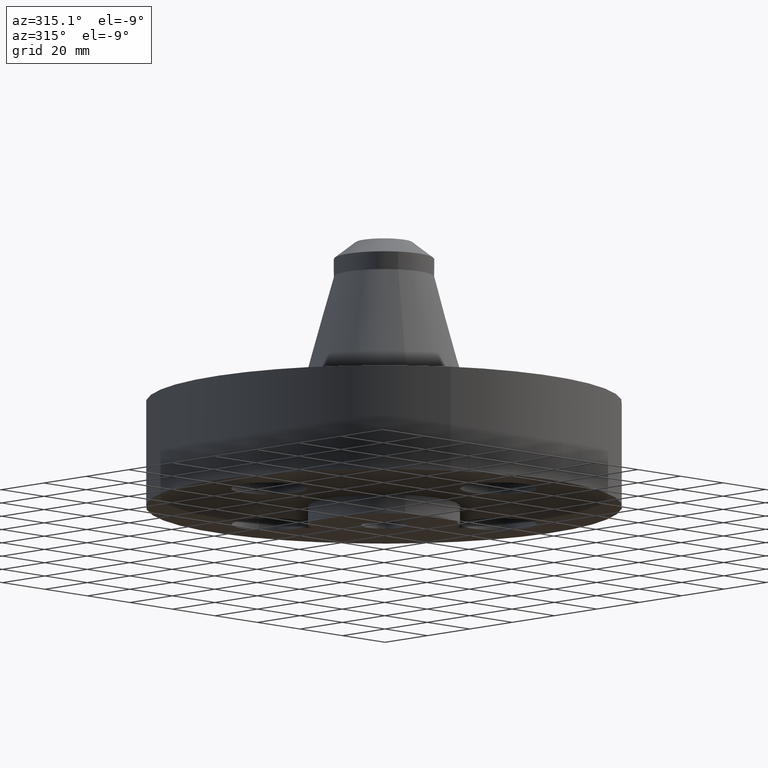
[diagram: clean part render]
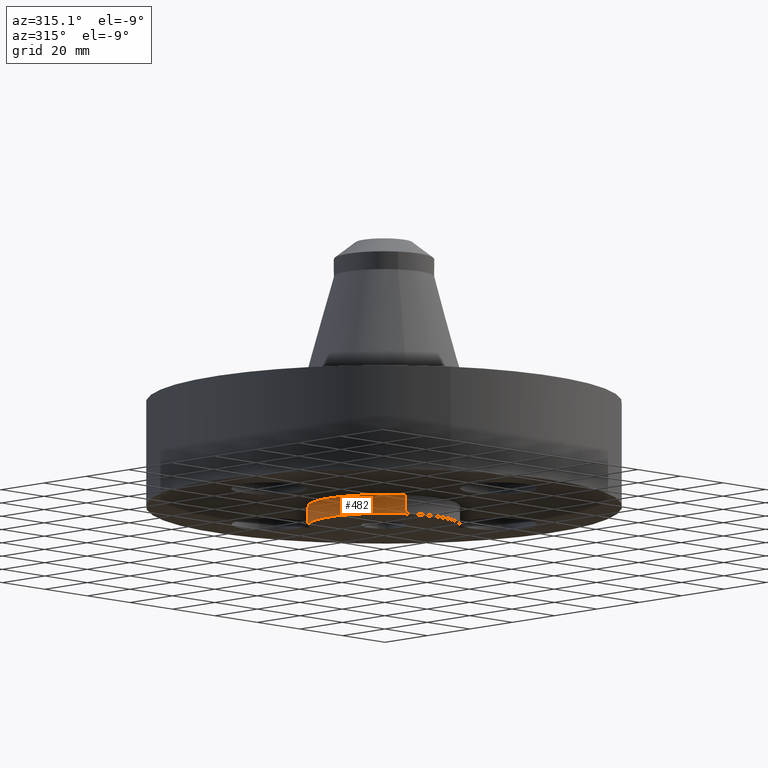
[diagram: same view with one face highlighted and labeled with its STEP entity id]
A machine part, auxiliary view. The second image highlights one B-rep face of the part: STEP entity #482.
In plain terms, the highlighted cylindrical surface (partial cylindrical patch) has radius 25.4 mm, axis along (0, 0, -1).
Its self-contained STEP definition (entity closure, byte-faithful):
#404=AXIS2_PLACEMENT_3D('Circle Axis2P3D',#402,#403,$) ;
#455=AXIS2_PLACEMENT_3D('Cylinder Axis2P3D',#452,#453,#454) ;
#466=AXIS2_PLACEMENT_3D('Circle Axis2P3D',#464,#465,$) ;
#402=CARTESIAN_POINT('Axis2P3D Location',(0.,0.,-0.250000000001)) ;
#406=CARTESIAN_POINT('Vertex',(-0.479425538606,-0.877582561894,-0.250000000001)) ;
#408=CARTESIAN_POINT('Vertex',(0.479425538606,0.877582561894,-0.250000000001)) ;
#452=CARTESIAN_POINT('Axis2P3D Location',(0.,0.,1.62500000001)) ;
#457=CARTESIAN_POINT('Line Origine',(-0.479425538606,-0.877582561894,-0.125)) ;
#461=CARTESIAN_POINT('Vertex',(-0.479425538606,-0.877582561894,2.79741234551E-016)) ;
#464=CARTESIAN_POINT('Axis2P3D Location',(0.,0.,0.)) ;
#468=CARTESIAN_POINT('Vertex',(0.479425538606,0.877582561894,2.79741234551E-016)) ;
#471=CARTESIAN_POINT('Line Origine',(0.479425538606,0.877582561894,-0.125)) ;
#403=DIRECTION('Axis2P3D Direction',(0.,0.,-0.0393700787402)) ;
#453=DIRECTION('Axis2P3D Direction',(0.,0.,-0.0393700787402)) ;
#454=DIRECTION('Axis2P3D XDirection',(0.0188750212049,0.0345504945626,0.)) ;
#458=DIRECTION('Vector Direction',(0.,0.,-0.0393700787402)) ;
#465=DIRECTION('Axis2P3D Direction',(0.,0.,-0.0393700787402)) ;
#472=DIRECTION('Vector Direction',(0.,0.,-0.0393700787402)) ;
#459=VECTOR('Line Direction',#458,0.0393700787402) ;
#473=VECTOR('Line Direction',#472,0.0393700787402) ;
#477=ORIENTED_EDGE('',*,*,#410,.F.) ;
#478=ORIENTED_EDGE('',*,*,#463,.T.) ;
#479=ORIENTED_EDGE('',*,*,#470,.T.) ;
#480=ORIENTED_EDGE('',*,*,#475,.F.) ;
#482=ADVANCED_FACE('PartBody',(#481),#456,.T.) ;
#405=CIRCLE('generated circle',#404,1.) ;
#467=CIRCLE('generated circle',#466,1.) ;
#456=CYLINDRICAL_SURFACE('generated cylinder',#455,1.) ;
#410=EDGE_CURVE('',#407,#409,#405,.T.) ;
#463=EDGE_CURVE('',#407,#462,#460,.F.) ;
#470=EDGE_CURVE('',#462,#469,#467,.T.) ;
#475=EDGE_CURVE('',#409,#469,#474,.F.) ;
#476=EDGE_LOOP('',(#477,#478,#479,#480)) ;
#481=FACE_OUTER_BOUND('',#476,.T.) ;
#460=LINE('Line',#457,#459) ;
#474=LINE('Line',#471,#473) ;
#407=VERTEX_POINT('',#406) ;
#409=VERTEX_POINT('',#408) ;
#462=VERTEX_POINT('',#461) ;
#469=VERTEX_POINT('',#468) ;